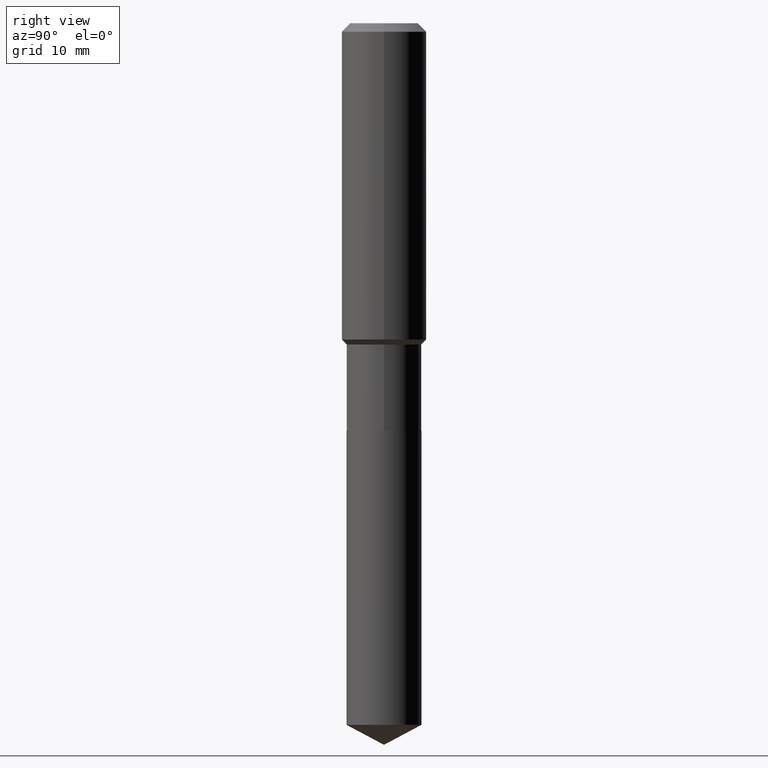
[diagram: clean part render]
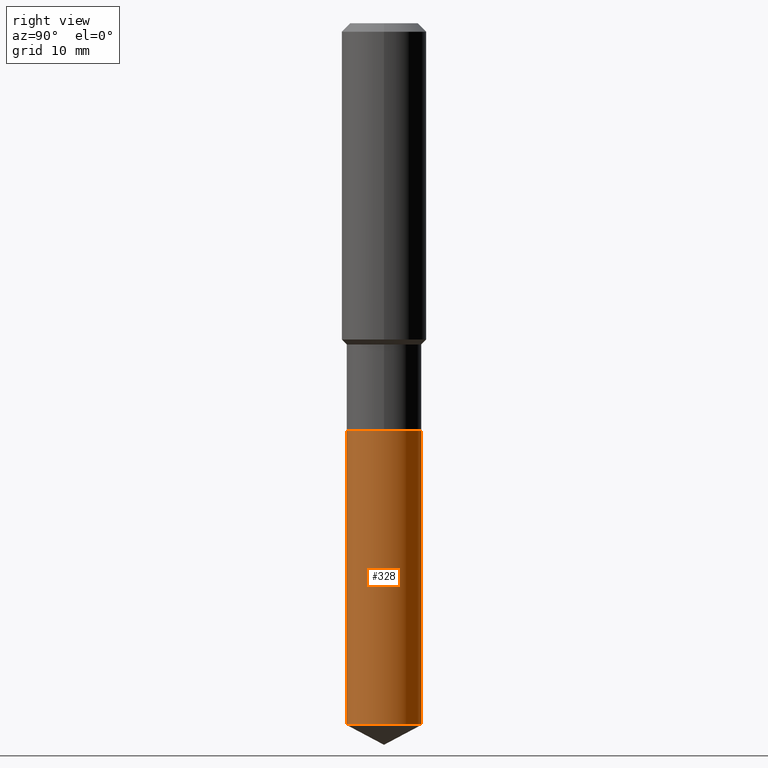
[diagram: same view with one face highlighted and labeled with its STEP entity id]
A machine part, right view. The second image highlights one B-rep face of the part: STEP entity #328.
In plain terms, the highlighted cylindrical surface (partial cylindrical patch) has radius 5.2997 mm, axis along (-0, 0, 1).
Its self-contained STEP definition (entity closure, byte-faithful):
#6 = VECTOR ( 'NONE', #81, 39.37007874015748143 ) ;
#19 = VERTEX_POINT ( 'NONE', #345 ) ;
#25 = DIRECTION ( 'NONE',  ( -2.445388383336124328E-29, 3.491596508940315272E-15, 1.000000000000000000 ) ) ;
#47 = CARTESIAN_POINT ( 'NONE',  ( 9.548834242332417038E-29, -1.363358112918744955E-14, -3.904758827083833150 ) ) ;
#52 = ORIENTED_EDGE ( 'NONE', *, *, #153, .T. ) ;
#81 = DIRECTION ( 'NONE',  ( -2.445388383336124328E-29, 3.491596508940315272E-15, 1.000000000000000000 ) ) ;
#88 = DIRECTION ( 'NONE',  ( -2.445388383336124328E-29, 3.491596508940315272E-15, 1.000000000000000000 ) ) ;
#93 = DIRECTION ( 'NONE',  ( -6.982962677686265922E-15, -1.000000000000000000, 3.927890716986719253E-15 ) ) ;
#104 = CARTESIAN_POINT ( 'NONE',  ( 1.482547418163544505E-15, 0.2086499999999864019, -3.904758827083833594 ) ) ;
#124 = LINE ( 'NONE', #197, #6 ) ;
#129 = CYLINDRICAL_SURFACE ( 'NONE', #438, 0.2086500000000000021 ) ;
#151 = CARTESIAN_POINT ( 'NONE',  ( -1.456995162699183723E-15, -0.2086500000000079402, -2.267599999999999394 ) ) ;
#153 = EDGE_CURVE ( 'NONE', #366, #448, #124, .T. ) ;
#174 = EDGE_CURVE ( 'NONE', #19, #448, #207, .T. ) ;
#180 = ORIENTED_EDGE ( 'NONE', *, *, #174, .F. ) ;
#189 = DIRECTION ( 'NONE',  ( -2.445388383336124328E-29, 3.491596508940315272E-15, 1.000000000000000000 ) ) ;
#192 = VERTEX_POINT ( 'NONE', #200 ) ;
#197 = CARTESIAN_POINT ( 'NONE',  ( 1.482547418163504470E-15, 0.2086499999999920918, -2.267600000000001170 ) ) ;
#200 = CARTESIAN_POINT ( 'NONE',  ( -1.456995162699143886E-15, -0.2086500000000136301, -3.904758827083832706 ) ) ;
#207 = CIRCLE ( 'NONE', #273, 0.2086500000000000021 ) ;
#238 = DIRECTION ( 'NONE',  ( -6.982962677686265922E-15, -1.000000000000000000, 3.927890716986719253E-15 ) ) ;
#255 = ORIENTED_EDGE ( 'NONE', *, *, #264, .F. ) ;
#261 = LINE ( 'NONE', #151, #282 ) ;
#264 = EDGE_CURVE ( 'NONE', #192, #19, #261, .T. ) ;
#273 = AXIS2_PLACEMENT_3D ( 'NONE', #362, #88, #238 ) ;
#280 = DIRECTION ( 'NONE',  ( -6.982962677686265922E-15, -1.000000000000000000, 2.618593811324479633E-15 ) ) ;
#282 = VECTOR ( 'NONE', #189, 39.37007874015748143 ) ;
#321 = CIRCLE ( 'NONE', #445, 0.2086500000000000021 ) ;
#328 = ADVANCED_FACE ( 'NONE', ( #381 ), #129, .T. ) ;
#344 = EDGE_LOOP ( 'NONE', ( #365, #52, #180, #255 ) ) ;
#345 = CARTESIAN_POINT ( 'NONE',  ( -1.456995162699183723E-15, -0.2086500000000079402, -2.267599999999999394 ) ) ;
#362 = CARTESIAN_POINT ( 'NONE',  ( 5.545345064905416332E-29, -7.917283083960716952E-15, -2.267600000000000282 ) ) ;
#365 = ORIENTED_EDGE ( 'NONE', *, *, #472, .T. ) ;
#366 = VERTEX_POINT ( 'NONE', #104 ) ;
#381 = FACE_OUTER_BOUND ( 'NONE', #344, .T. ) ;
#392 = DIRECTION ( 'NONE',  ( -2.445388383336124328E-29, 3.491596508940315272E-15, 1.000000000000000000 ) ) ;
#414 = CARTESIAN_POINT ( 'NONE',  ( 1.482547418163544702E-15, 0.2086499999999920918, -2.267600000000001170 ) ) ;
#438 = AXIS2_PLACEMENT_3D ( 'NONE', #439, #25, #93 ) ;
#439 = CARTESIAN_POINT ( 'NONE',  ( 5.545345064905416332E-29, -7.917283083960716952E-15, -2.267600000000000282 ) ) ;
#445 = AXIS2_PLACEMENT_3D ( 'NONE', #47, #392, #280 ) ;
#448 = VERTEX_POINT ( 'NONE', #414 ) ;
#472 = EDGE_CURVE ( 'NONE', #192, #366, #321, .T. ) ;